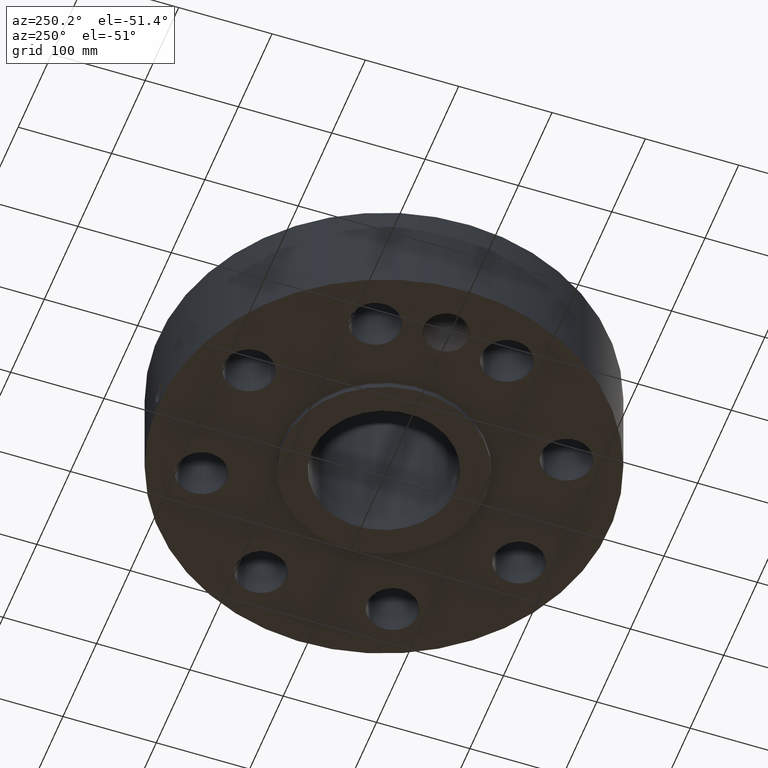
[diagram: clean part render]
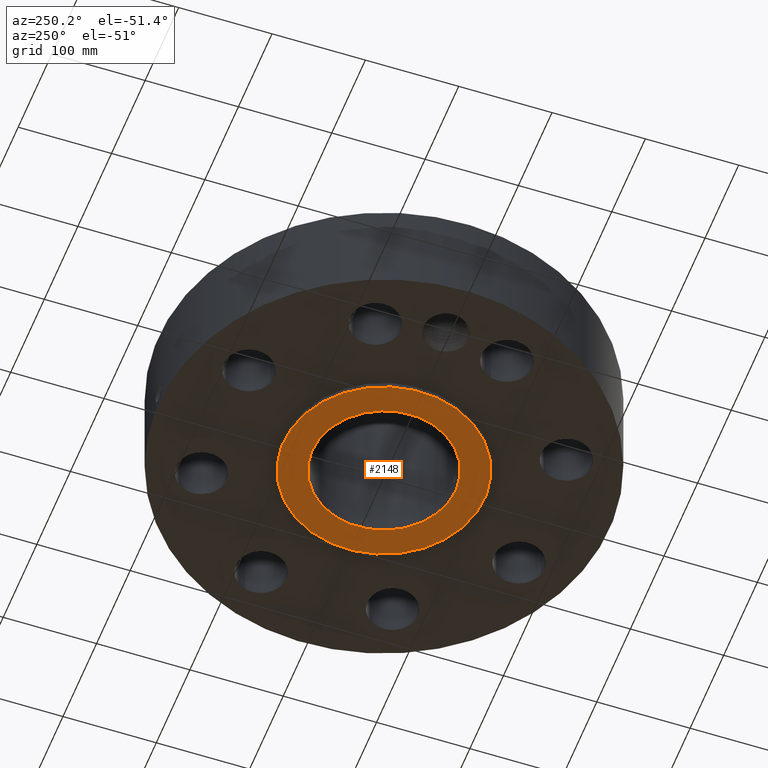
[diagram: same view with one face highlighted and labeled with its STEP entity id]
A machine part, auxiliary view. The second image highlights one B-rep face of the part: STEP entity #2148.
In plain terms, the highlighted planar face has unit normal (0, 0, -1).
Its self-contained STEP definition (entity closure, byte-faithful):
#1145=AXIS2_PLACEMENT_3D('Circle Axis2P3D',#1143,#1144,$) ;
#1171=AXIS2_PLACEMENT_3D('Circle Axis2P3D',#1169,#1170,$) ;
#2124=AXIS2_PLACEMENT_3D('Plane Axis2P3D',#2121,#2122,#2123) ;
#2132=AXIS2_PLACEMENT_3D('Circle Axis2P3D',#2130,#2131,$) ;
#2141=AXIS2_PLACEMENT_3D('Circle Axis2P3D',#2139,#2140,$) ;
#1143=CARTESIAN_POINT('Axis2P3D Location',(0.,0.,0.)) ;
#1147=CARTESIAN_POINT('Vertex',(2.03755853908,3.72972588805,0.)) ;
#1149=CARTESIAN_POINT('Vertex',(-2.03755853908,-3.72972588805,0.)) ;
#1169=CARTESIAN_POINT('Axis2P3D Location',(0.,0.,0.)) ;
#2121=CARTESIAN_POINT('Axis2P3D Location',(0.,3.03250000001,0.)) ;
#2130=CARTESIAN_POINT('Axis2P3D Location',(0.,0.,0.)) ;
#2134=CARTESIAN_POINT('Vertex',(1.45385794582,2.66126911894,-7.83275456743E-015)) ;
#2136=CARTESIAN_POINT('Vertex',(-1.45385794582,-2.66126911894,-7.83275456743E-015)) ;
#2139=CARTESIAN_POINT('Axis2P3D Location',(0.,0.,0.)) ;
#1144=DIRECTION('Axis2P3D Direction',(0.,0.,-0.0393700787402)) ;
#1170=DIRECTION('Axis2P3D Direction',(0.,0.,-0.0393700787402)) ;
#2122=DIRECTION('Axis2P3D Direction',(0.,0.,-0.0393700787402)) ;
#2123=DIRECTION('Axis2P3D XDirection',(0.0393700787402,0.,0.)) ;
#2131=DIRECTION('Axis2P3D Direction',(0.,0.,-0.0393700787402)) ;
#2140=DIRECTION('Axis2P3D Direction',(0.,0.,-0.0393700787402)) ;
#2127=ORIENTED_EDGE('',*,*,#1173,.T.) ;
#2128=ORIENTED_EDGE('',*,*,#1151,.T.) ;
#2145=ORIENTED_EDGE('',*,*,#2138,.F.) ;
#2146=ORIENTED_EDGE('',*,*,#2143,.F.) ;
#2147=FACE_BOUND('',#2144,.T.) ;
#2148=ADVANCED_FACE('PartBody',(#2129,#2147),#2125,.T.) ;
#1146=CIRCLE('generated circle',#1145,4.25000000002) ;
#1172=CIRCLE('generated circle',#1171,4.25000000002) ;
#2133=CIRCLE('generated circle',#2132,3.03250000001) ;
#2142=CIRCLE('generated circle',#2141,3.03250000001) ;
#1151=EDGE_CURVE('',#1148,#1150,#1146,.T.) ;
#1173=EDGE_CURVE('',#1150,#1148,#1172,.T.) ;
#2138=EDGE_CURVE('',#2135,#2137,#2133,.T.) ;
#2143=EDGE_CURVE('',#2137,#2135,#2142,.T.) ;
#2126=EDGE_LOOP('',(#2127,#2128)) ;
#2144=EDGE_LOOP('',(#2145,#2146)) ;
#2129=FACE_OUTER_BOUND('',#2126,.T.) ;
#2125=PLANE('',#2124) ;
#1148=VERTEX_POINT('',#1147) ;
#1150=VERTEX_POINT('',#1149) ;
#2135=VERTEX_POINT('',#2134) ;
#2137=VERTEX_POINT('',#2136) ;